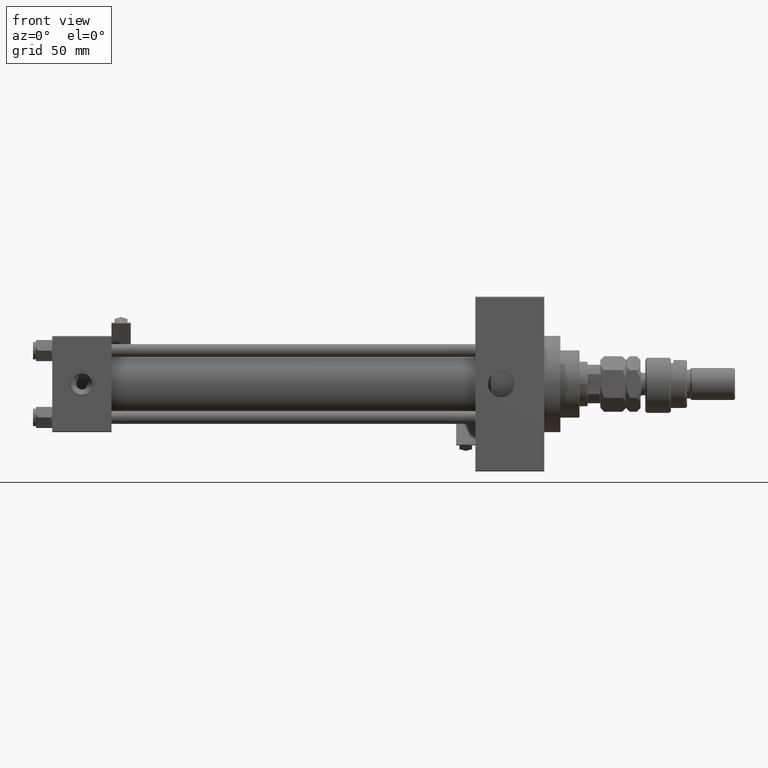
[diagram: clean part render]
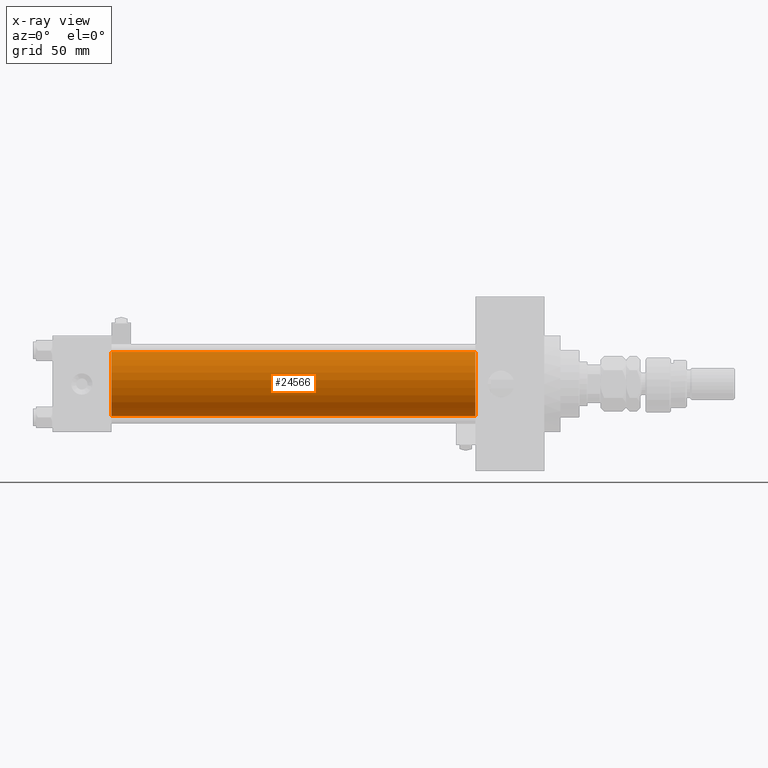
[diagram: x-ray — body ghosted, one internal face saturated and labeled with its STEP entity id]
A machine part, front view, then the same camera in x-ray: the body is ghosted and one INTERNAL B-rep face — a face not visible from any outside direction — is saturated and labeled: STEP entity #24566.
In plain terms, the highlighted cylindrical surface (edge-blend (fillet) strip) has radius 20 mm, axis along (-1, -0, -0).
Its self-contained STEP definition (entity closure, byte-faithful):
#1967 = EDGE_CURVE ( 'NONE', #5842, #2134, #10854, .T. ) ;
#2134 = VERTEX_POINT ( 'NONE', #28308 ) ;
#3309 = CARTESIAN_POINT ( 'NONE',  ( 264.0000000000000000, -1.527916156705046464E-16, -20.00000000000000000 ) ) ;
#5842 = VERTEX_POINT ( 'NONE', #9371 ) ;
#8672 = VECTOR ( 'NONE', #31282, 1000.000000000000000 ) ;
#9371 = CARTESIAN_POINT ( 'NONE',  ( 264.0000000000000000, -1.527916156705046464E-16, -20.00000000000000000 ) ) ;
#10854 = LINE ( 'NONE', #3309, #8672 ) ;
#13816 = CIRCLE ( 'NONE', #36142, 20.00000000000000000 ) ;
#15572 = ORIENTED_EDGE ( 'NONE', *, *, #48058, .F. ) ;
#15892 = AXIS2_PLACEMENT_3D ( 'NONE', #21811, #49273, #38762 ) ;
#17852 = CYLINDRICAL_SURFACE ( 'NONE', #25080, 20.00000000000000000 ) ;
#18392 = DIRECTION ( 'NONE',  ( 0.000000000000000000, 0.000000000000000000, 1.000000000000000000 ) ) ;
#18657 = CARTESIAN_POINT ( 'NONE',  ( 264.0000000000000000, -2.602085213965210642E-15, 0.000000000000000000 ) ) ;
#18924 = FACE_OUTER_BOUND ( 'NONE', #23242, .T. ) ;
#19632 = CARTESIAN_POINT ( 'NONE',  ( 264.0000000000000000, -2.602085213965210642E-15, 20.00000000000000000 ) ) ;
#20558 = LINE ( 'NONE', #36966, #22767 ) ;
#21811 = CARTESIAN_POINT ( 'NONE',  ( 264.0000000000000000, -2.602085213965210642E-15, 0.000000000000000000 ) ) ;
#22706 = DIRECTION ( 'NONE',  ( -1.000000000000000000, -0.000000000000000000, -0.000000000000000000 ) ) ;
#22767 = VECTOR ( 'NONE', #40227, 1000.000000000000000 ) ;
#23242 = EDGE_LOOP ( 'NONE', ( #38926, #27209, #15572, #27027 ) ) ;
#24566 = ADVANCED_FACE ( 'NONE', ( #18924 ), #17852, .F. ) ;
#25080 = AXIS2_PLACEMENT_3D ( 'NONE', #18657, #22706, #18392 ) ;
#27027 = ORIENTED_EDGE ( 'NONE', *, *, #35779, .F. ) ;
#27209 = ORIENTED_EDGE ( 'NONE', *, *, #1967, .T. ) ;
#28308 = CARTESIAN_POINT ( 'NONE',  ( 37.00000000000000000, -1.527916156705046464E-16, -20.00000000000000000 ) ) ;
#31282 = DIRECTION ( 'NONE',  ( -1.000000000000000000, -0.000000000000000000, -0.000000000000000000 ) ) ;
#32851 = VERTEX_POINT ( 'NONE', #19632 ) ;
#35779 = EDGE_CURVE ( 'NONE', #32851, #51203, #20558, .T. ) ;
#36142 = AXIS2_PLACEMENT_3D ( 'NONE', #40810, #36511, #49655 ) ;
#36273 = EDGE_CURVE ( 'NONE', #32851, #5842, #39091, .T. ) ;
#36511 = DIRECTION ( 'NONE',  ( 1.000000000000000000, 0.000000000000000000, 0.000000000000000000 ) ) ;
#36966 = CARTESIAN_POINT ( 'NONE',  ( 264.0000000000000000, -2.602085213965210642E-15, 20.00000000000000000 ) ) ;
#37150 = CARTESIAN_POINT ( 'NONE',  ( 37.00000000000000000, -2.602085213965210642E-15, 20.00000000000000000 ) ) ;
#38762 = DIRECTION ( 'NONE',  ( 0.000000000000000000, 0.000000000000000000, -1.000000000000000000 ) ) ;
#38926 = ORIENTED_EDGE ( 'NONE', *, *, #36273, .T. ) ;
#39091 = CIRCLE ( 'NONE', #15892, 20.00000000000000000 ) ;
#40227 = DIRECTION ( 'NONE',  ( -1.000000000000000000, -0.000000000000000000, -0.000000000000000000 ) ) ;
#40810 = CARTESIAN_POINT ( 'NONE',  ( 37.00000000000000000, -2.602085213965210642E-15, 0.000000000000000000 ) ) ;
#48058 = EDGE_CURVE ( 'NONE', #51203, #2134, #13816, .T. ) ;
#49273 = DIRECTION ( 'NONE',  ( 1.000000000000000000, 0.000000000000000000, 0.000000000000000000 ) ) ;
#49655 = DIRECTION ( 'NONE',  ( 0.000000000000000000, 0.000000000000000000, -1.000000000000000000 ) ) ;
#51203 = VERTEX_POINT ( 'NONE', #37150 ) ;